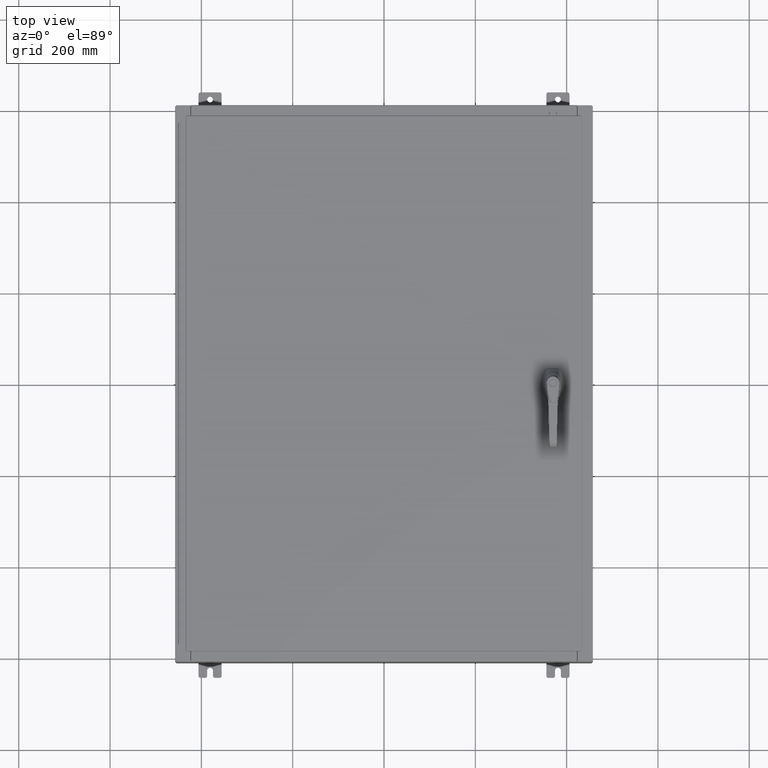
[diagram: clean part render]
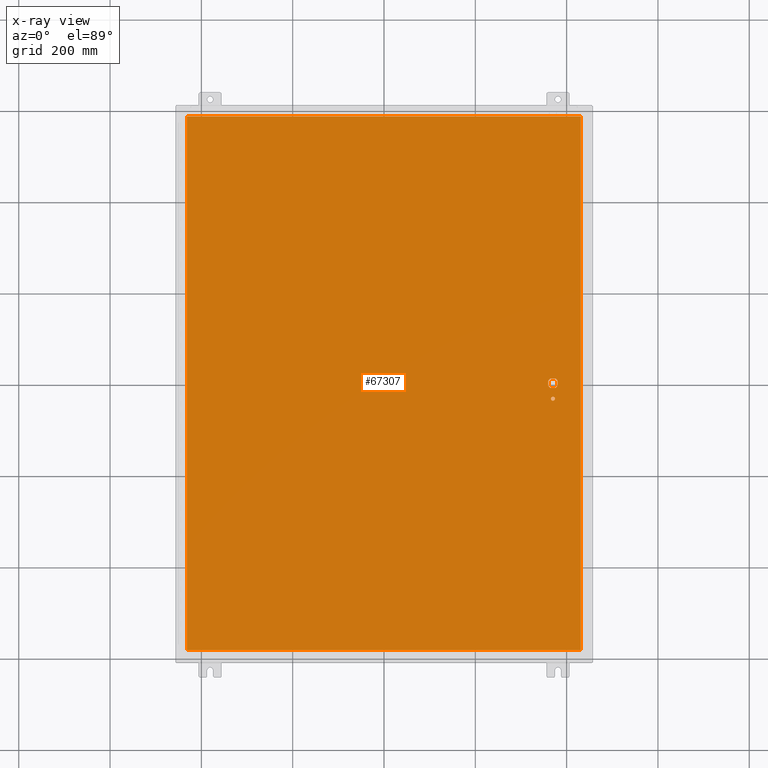
[diagram: x-ray — body ghosted, one internal face saturated and labeled with its STEP entity id]
A machine part, top view, then the same camera in x-ray: the body is ghosted and one INTERNAL B-rep face — a face not visible from any outside direction — is saturated and labeled: STEP entity #67307.
In plain terms, the highlighted planar face has unit normal (0, 0, -1).
Its self-contained STEP definition (entity closure, byte-faithful):
#772 = ORIENTED_EDGE ( 'NONE', *, *, #116173, .T. ) ;
#1849 = DIRECTION ( 'NONE',  ( -1.000000000000000000, 0.0000000000000000000, -0.0000000000000000000 ) ) ;
#3213 = ORIENTED_EDGE ( 'NONE', *, *, #108405, .F. ) ;
#3396 = EDGE_CURVE ( 'NONE', #56090, #24223, #36090, .T. ) ;
#4102 = DIRECTION ( 'NONE',  ( -0.0000000000000000000, -0.0000000000000000000, 1.000000000000000000 ) ) ;
#4601 = CIRCLE ( 'NONE', #83764, 0.4499999999999168000 ) ;
#6217 = VERTEX_POINT ( 'NONE', #102881 ) ;
#7247 = EDGE_CURVE ( 'NONE', #53373, #111216, #4601, .T. ) ;
#7592 = ORIENTED_EDGE ( 'NONE', *, *, #33780, .T. ) ;
#7598 = DIRECTION ( 'NONE',  ( -0.0000000000000000000, -0.0000000000000000000, 1.000000000000000000 ) ) ;
#8486 = CARTESIAN_POINT ( 'NONE',  ( 16.99029999999999800, -23.00630000000000000, -0.07470000000000000300 ) ) ;
#9803 = CARTESIAN_POINT ( 'NONE',  ( 14.57799999999999900, 0.0000000000000000000, -0.07470000000000003000 ) ) ;
#10073 = EDGE_LOOP ( 'NONE', ( #81721, #110846 ) ) ;
#12626 = VERTEX_POINT ( 'NONE', #31120 ) ;
#14703 = EDGE_CURVE ( 'NONE', #56516, #56944, #22892, .T. ) ;
#15216 = DIRECTION ( 'NONE',  ( 0.0000000000000000000, -1.000000000000000000, 0.0000000000000000000 ) ) ;
#17799 = EDGE_CURVE ( 'NONE', #56944, #12626, #59665, .T. ) ;
#18857 = LINE ( 'NONE', #53316, #98407 ) ;
#20268 = DIRECTION ( 'NONE',  ( -0.0000000000000000000, -0.0000000000000000000, 1.000000000000000000 ) ) ;
#21272 = VECTOR ( 'NONE', #52752, 39.37007874015748100 ) ;
#22073 = ORIENTED_EDGE ( 'NONE', *, *, #7247, .T. ) ;
#22106 = AXIS2_PLACEMENT_3D ( 'NONE', #84381, #63898, #1849 ) ;
#22892 = CIRCLE ( 'NONE', #65011, 0.4499999999999168000 ) ;
#23637 = ORIENTED_EDGE ( 'NONE', *, *, #14703, .T. ) ;
#24023 = DIRECTION ( 'NONE',  ( 1.000000000000000000, 0.0000000000000000000, 0.0000000000000000000 ) ) ;
#24223 = VERTEX_POINT ( 'NONE', #77190 ) ;
#24753 = DIRECTION ( 'NONE',  ( -0.0000000000000000000, -0.0000000000000000000, 1.000000000000000000 ) ) ;
#24869 = EDGE_CURVE ( 'NONE', #6217, #133722, #117691, .T. ) ;
#25916 = EDGE_CURVE ( 'NONE', #53373, #63320, #49372, .T. ) ;
#28641 = DIRECTION ( 'NONE',  ( -0.0000000000000000000, -0.0000000000000000000, 1.000000000000000000 ) ) ;
#31120 = CARTESIAN_POINT ( 'NONE',  ( 14.77822737075630900, -0.4029999999999252000, -0.07470000000000003000 ) ) ;
#32143 = VECTOR ( 'NONE', #24023, 39.37007874015748100 ) ;
#33780 = EDGE_CURVE ( 'NONE', #24223, #56516, #132765, .T. ) ;
#34977 = ORIENTED_EDGE ( 'NONE', *, *, #96425, .F. ) ;
#35500 = CIRCLE ( 'NONE', #133723, 0.4499999999999168000 ) ;
#35725 = VECTOR ( 'NONE', #63618, 39.37007874015748100 ) ;
#35958 = EDGE_CURVE ( 'NONE', #65586, #6217, #38962, .T. ) ;
#36090 = CIRCLE ( 'NONE', #107751, 0.4499999999999168000 ) ;
#37479 = VERTEX_POINT ( 'NONE', #86346 ) ;
#38962 = LINE ( 'NONE', #94569, #35725 ) ;
#42591 = CARTESIAN_POINT ( 'NONE',  ( 14.98099999999992700, 8.175868191945441800E-014, -0.07470000000000003000 ) ) ;
#43323 = DIRECTION ( 'NONE',  ( 1.000000000000000000, -0.0000000000000000000, -0.0000000000000000000 ) ) ;
#49372 = LINE ( 'NONE', #42591, #76997 ) ;
#52582 = ORIENTED_EDGE ( 'NONE', *, *, #3396, .T. ) ;
#52752 = DIRECTION ( 'NONE',  ( 0.0000000000000000000, -1.000000000000000000, 0.0000000000000000000 ) ) ;
#53208 = EDGE_CURVE ( 'NONE', #111216, #56090, #60232, .T. ) ;
#53316 = CARTESIAN_POINT ( 'NONE',  ( -16.99029999999999800, -23.00630000000000300, -0.07469999999999804600 ) ) ;
#53373 = VERTEX_POINT ( 'NONE', #65272 ) ;
#54805 = CARTESIAN_POINT ( 'NONE',  ( 0.0000000000000000000, -0.4029999999999252000, -0.07470000000000003000 ) ) ;
#56090 = VERTEX_POINT ( 'NONE', #81106 ) ;
#56350 = CARTESIAN_POINT ( 'NONE',  ( -16.99029999999999800, -23.00630000000000000, -0.07470000000000000300 ) ) ;
#56516 = VERTEX_POINT ( 'NONE', #107323 ) ;
#56944 = VERTEX_POINT ( 'NONE', #126235 ) ;
#58590 = DIRECTION ( 'NONE',  ( -0.0000000000000000000, -0.0000000000000000000, 1.000000000000000000 ) ) ;
#59665 = LINE ( 'NONE', #54805, #32143 ) ;
#60232 = LINE ( 'NONE', #94885, #112189 ) ;
#60843 = ORIENTED_EDGE ( 'NONE', *, *, #35958, .F. ) ;
#61098 = FACE_OUTER_BOUND ( 'NONE', #63699, .T. ) ;
#61415 = ORIENTED_EDGE ( 'NONE', *, *, #25916, .F. ) ;
#63189 = CARTESIAN_POINT ( 'NONE',  ( -16.99029999999999400, 23.00630000000001000, -0.07470000000000129300 ) ) ;
#63320 = VERTEX_POINT ( 'NONE', #90739 ) ;
#63618 = DIRECTION ( 'NONE',  ( 0.0000000000000000000, 1.000000000000000000, 0.0000000000000000000 ) ) ;
#63699 = EDGE_LOOP ( 'NONE', ( #60843, #34977, #3213, #85469 ) ) ;
#63898 = DIRECTION ( 'NONE',  ( 0.0000000000000000000, 0.0000000000000000000, -1.000000000000000000 ) ) ;
#65011 = AXIS2_PLACEMENT_3D ( 'NONE', #69688, #7598, #80140 ) ;
#65272 = CARTESIAN_POINT ( 'NONE',  ( 14.98099999999992700, 0.2002273707563075900, -0.07470000000000003000 ) ) ;
#65586 = VERTEX_POINT ( 'NONE', #8486 ) ;
#66195 = CARTESIAN_POINT ( 'NONE',  ( 14.57799999999999900, -1.338000000000000100, -0.07470000000000003000 ) ) ;
#67307 = ADVANCED_FACE ( 'NONE', ( #106571, #61098, #134176 ), #105237, .T. ) ;
#68351 = DIRECTION ( 'NONE',  ( -1.000000000000000000, -0.0000000000000000000, -0.0000000000000000000 ) ) ;
#69688 = CARTESIAN_POINT ( 'NONE',  ( 14.57799999999999900, 0.0000000000000000000, -0.07470000000000003000 ) ) ;
#74055 = CIRCLE ( 'NONE', #81869, 0.1715000000000011500 ) ;
#76644 = DIRECTION ( 'NONE',  ( -1.000000000000000000, 0.0000000000000000000, 0.0000000000000000000 ) ) ;
#76896 = CARTESIAN_POINT ( 'NONE',  ( 14.17500000000007400, 0.0000000000000000000, -0.07470000000000003000 ) ) ;
#76997 = VECTOR ( 'NONE', #115203, 39.37007874015748100 ) ;
#77107 = CARTESIAN_POINT ( 'NONE',  ( 14.77822737075630900, 0.4029999999999250300, -0.07470000000000003000 ) ) ;
#77190 = CARTESIAN_POINT ( 'NONE',  ( 14.17500000000007400, 0.2002273707563075900, -0.07470000000000003000 ) ) ;
#80140 = DIRECTION ( 'NONE',  ( -1.000000000000000000, -1.776356839400246700E-015, 0.0000000000000000000 ) ) ;
#81106 = CARTESIAN_POINT ( 'NONE',  ( 14.37777262924369000, 0.4029999999999252000, -0.07470000000000003000 ) ) ;
#81721 = ORIENTED_EDGE ( 'NONE', *, *, #107346, .T. ) ;
#81869 = AXIS2_PLACEMENT_3D ( 'NONE', #120751, #58590, #131213 ) ;
#83170 = CARTESIAN_POINT ( 'NONE',  ( -16.99029999999999400, 23.00630000000000300, -0.07470000000000000300 ) ) ;
#83764 = AXIS2_PLACEMENT_3D ( 'NONE', #90785, #28641, #101201 ) ;
#84381 = CARTESIAN_POINT ( 'NONE',  ( 0.0000000000000000000, 0.0000000000000000000, -0.07470000000000000300 ) ) ;
#85469 = ORIENTED_EDGE ( 'NONE', *, *, #24869, .F. ) ;
#86346 = CARTESIAN_POINT ( 'NONE',  ( 14.40649999999999800, -1.338000000000000100, -0.07470000000000003000 ) ) ;
#86873 = CARTESIAN_POINT ( 'NONE',  ( 14.57799999999999900, 0.0000000000000000000, -0.07470000000000003000 ) ) ;
#89705 = EDGE_CURVE ( 'NONE', #37479, #114816, #74055, .T. ) ;
#90157 = VECTOR ( 'NONE', #68351, 39.37007874015748100 ) ;
#90739 = CARTESIAN_POINT ( 'NONE',  ( 14.98099999999992700, -0.2002273707563067300, -0.07470000000000003000 ) ) ;
#90785 = CARTESIAN_POINT ( 'NONE',  ( 14.57799999999999900, 0.0000000000000000000, -0.07470000000000003000 ) ) ;
#94569 = CARTESIAN_POINT ( 'NONE',  ( 16.99029999999999800, -23.00630000000000300, -0.07470000000000019700 ) ) ;
#94885 = CARTESIAN_POINT ( 'NONE',  ( 0.0000000000000000000, 0.4029999999999252000, -0.07470000000000003000 ) ) ;
#96425 = EDGE_CURVE ( 'NONE', #102494, #65586, #18857, .T. ) ;
#97345 = DIRECTION ( 'NONE',  ( -1.000000000000000000, -1.776356839400246700E-015, 0.0000000000000000000 ) ) ;
#98407 = VECTOR ( 'NONE', #43323, 39.37007874015748100 ) ;
#99979 = CARTESIAN_POINT ( 'NONE',  ( 14.74950000000000100, -1.338000000000000100, -0.07470000000000003000 ) ) ;
#101201 = DIRECTION ( 'NONE',  ( -1.000000000000000000, -5.329070518200740300E-015, 0.0000000000000000000 ) ) ;
#102494 = VERTEX_POINT ( 'NONE', #56350 ) ;
#102863 = DIRECTION ( 'NONE',  ( -1.000000000000000000, -5.329070518200740300E-015, 0.0000000000000000000 ) ) ;
#102881 = CARTESIAN_POINT ( 'NONE',  ( 16.99029999999999800, 23.00630000000000300, -0.07470000000000000300 ) ) ;
#104066 = LINE ( 'NONE', #63189, #21272 ) ;
#105175 = VECTOR ( 'NONE', #15216, 39.37007874015748100 ) ;
#105237 = PLANE ( 'NONE',  #22106 ) ;
#106139 = EDGE_LOOP ( 'NONE', ( #772, #61415, #22073, #119823, #52582, #7592, #23637, #121700 ) ) ;
#106571 = FACE_BOUND ( 'NONE', #10073, .T. ) ;
#107323 = CARTESIAN_POINT ( 'NONE',  ( 14.17500000000007400, -0.2002273707563079800, -0.07470000000000003000 ) ) ;
#107346 = EDGE_CURVE ( 'NONE', #114816, #37479, #120411, .T. ) ;
#107751 = AXIS2_PLACEMENT_3D ( 'NONE', #9803, #20268, #102863 ) ;
#108405 = EDGE_CURVE ( 'NONE', #133722, #102494, #104066, .T. ) ;
#109661 = CARTESIAN_POINT ( 'NONE',  ( 16.99029999999999800, 23.00630000000001000, -0.07469999999999804600 ) ) ;
#110846 = ORIENTED_EDGE ( 'NONE', *, *, #89705, .T. ) ;
#111216 = VERTEX_POINT ( 'NONE', #77107 ) ;
#112189 = VECTOR ( 'NONE', #133426, 39.37007874015748100 ) ;
#114816 = VERTEX_POINT ( 'NONE', #99979 ) ;
#115203 = DIRECTION ( 'NONE',  ( 5.457491617345625800E-015, -1.000000000000000000, 0.0000000000000000000 ) ) ;
#116173 = EDGE_CURVE ( 'NONE', #12626, #63320, #35500, .T. ) ;
#117691 = LINE ( 'NONE', #109661, #90157 ) ;
#119823 = ORIENTED_EDGE ( 'NONE', *, *, #53208, .T. ) ;
#120411 = CIRCLE ( 'NONE', #122977, 0.1715000000000011500 ) ;
#120751 = CARTESIAN_POINT ( 'NONE',  ( 14.57799999999999900, -1.338000000000000100, -0.07470000000000003000 ) ) ;
#121700 = ORIENTED_EDGE ( 'NONE', *, *, #17799, .T. ) ;
#122977 = AXIS2_PLACEMENT_3D ( 'NONE', #66195, #4102, #76644 ) ;
#126235 = CARTESIAN_POINT ( 'NONE',  ( 14.37777262924369000, -0.4029999999999250300, -0.07470000000000003000 ) ) ;
#131213 = DIRECTION ( 'NONE',  ( -1.000000000000000000, 0.0000000000000000000, 0.0000000000000000000 ) ) ;
#132765 = LINE ( 'NONE', #76896, #105175 ) ;
#133426 = DIRECTION ( 'NONE',  ( -1.000000000000000000, 0.0000000000000000000, 0.0000000000000000000 ) ) ;
#133722 = VERTEX_POINT ( 'NONE', #83170 ) ;
#133723 = AXIS2_PLACEMENT_3D ( 'NONE', #86873, #24753, #97345 ) ;
#134176 = FACE_BOUND ( 'NONE', #106139, .T. ) ;